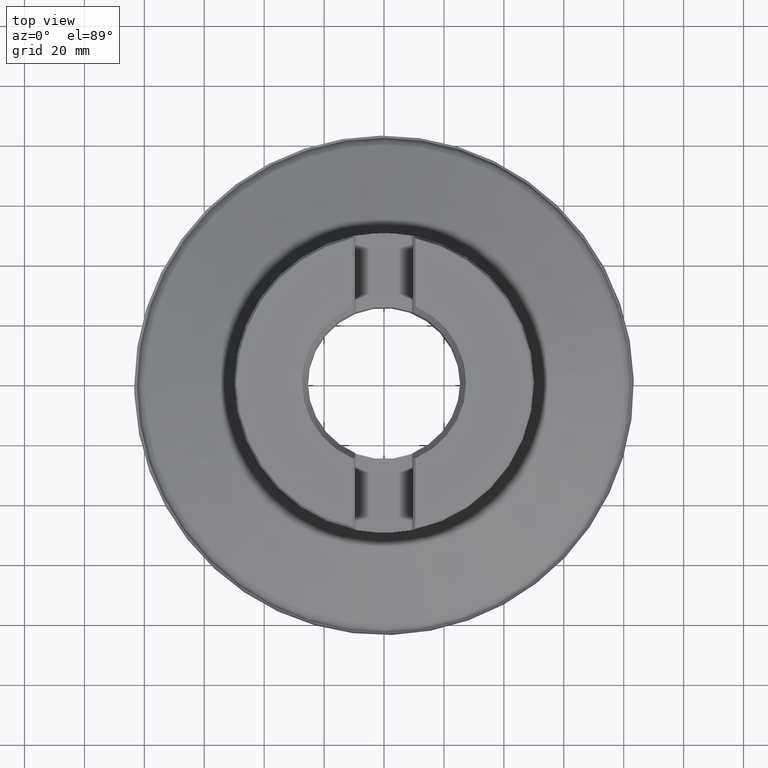
[diagram: clean part render]
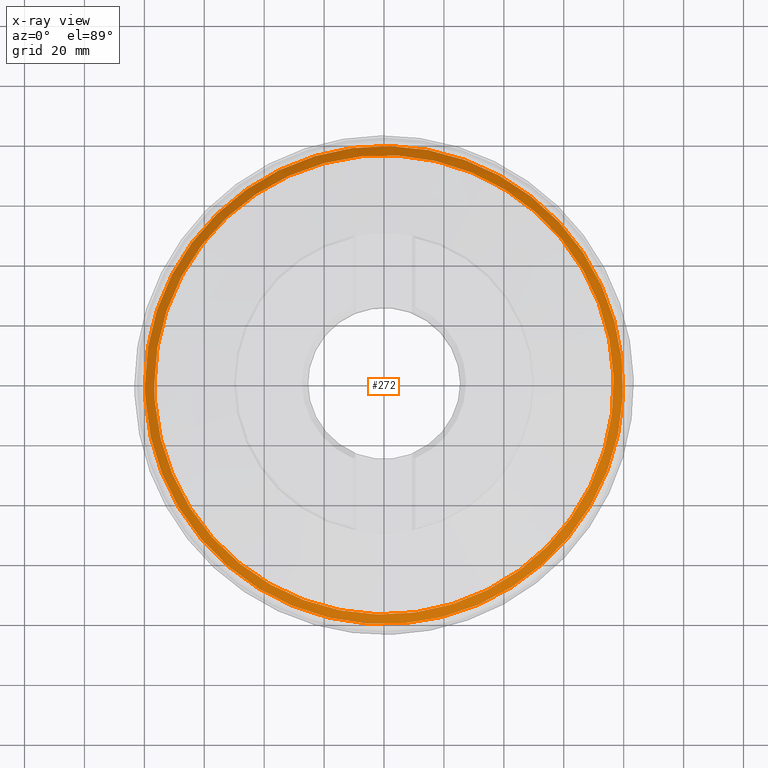
[diagram: x-ray — body ghosted, one internal face saturated and labeled with its STEP entity id]
A machine part, top view, then the same camera in x-ray: the body is ghosted and one INTERNAL B-rep face — a face not visible from any outside direction — is saturated and labeled: STEP entity #272.
In plain terms, the highlighted face is a SurfaceOfRevolution surface.
Its self-contained STEP definition (entity closure, byte-faithful):
#131=SURFACE_OF_REVOLUTION('',#317,#153);
#153=AXIS1_PLACEMENT('',#2103,#1395);
#272=ADVANCED_FACE('',(#438,#439),#131,.F.);
#317=LINE('',#2102,#353);
#353=VECTOR('',#1394,4.41942801874022);
#438=FACE_BOUND('',#544,.T.);
#439=FACE_BOUND('',#545,.T.);
#544=EDGE_LOOP('',(#748));
#545=EDGE_LOOP('',(#749));
#748=ORIENTED_EDGE('',*,*,#933,.T.);
#749=ORIENTED_EDGE('',*,*,#914,.F.);
#812=VERTEX_POINT('',#1977);
#831=VERTEX_POINT('',#2099);
#914=EDGE_CURVE('',#812,#812,#968,.T.);
#933=EDGE_CURVE('',#831,#831,#987,.T.);
#968=CIRCLE('',#1118,76.679166691079);
#987=CIRCLE('',#1137,79.81818468526);
#1118=AXIS2_PLACEMENT_3D('',#1976,#1324,#1325);
#1137=AXIS2_PLACEMENT_3D('',#2098,#1390,#1391);
#1324=DIRECTION('',(0.,0.,-1.));
#1325=DIRECTION('',(-1.,0.,0.));
#1390=DIRECTION('',(0.,0.,-1.));
#1391=DIRECTION('',(-1.,0.,0.));
#1394=DIRECTION('',(-0.235116632122983,-0.701310650755444,-0.672966225330901));
#1395=DIRECTION('',(0.,0.,-1.));
#1976=CARTESIAN_POINT('',(0.,0.,14.6406719749227));
#1977=CARTESIAN_POINT('',(-76.679166691079,0.,14.6406719749227));
#2098=CARTESIAN_POINT('',(0.,0.,11.6665461830295));
#2099=CARTESIAN_POINT('',(-79.81818468526,0.,11.6665461830295));
#2102=CARTESIAN_POINT('',(-2.66143453238531,-76.6329652999811,14.6406719749227));
#2103=CARTESIAN_POINT('',(0.,0.,0.));